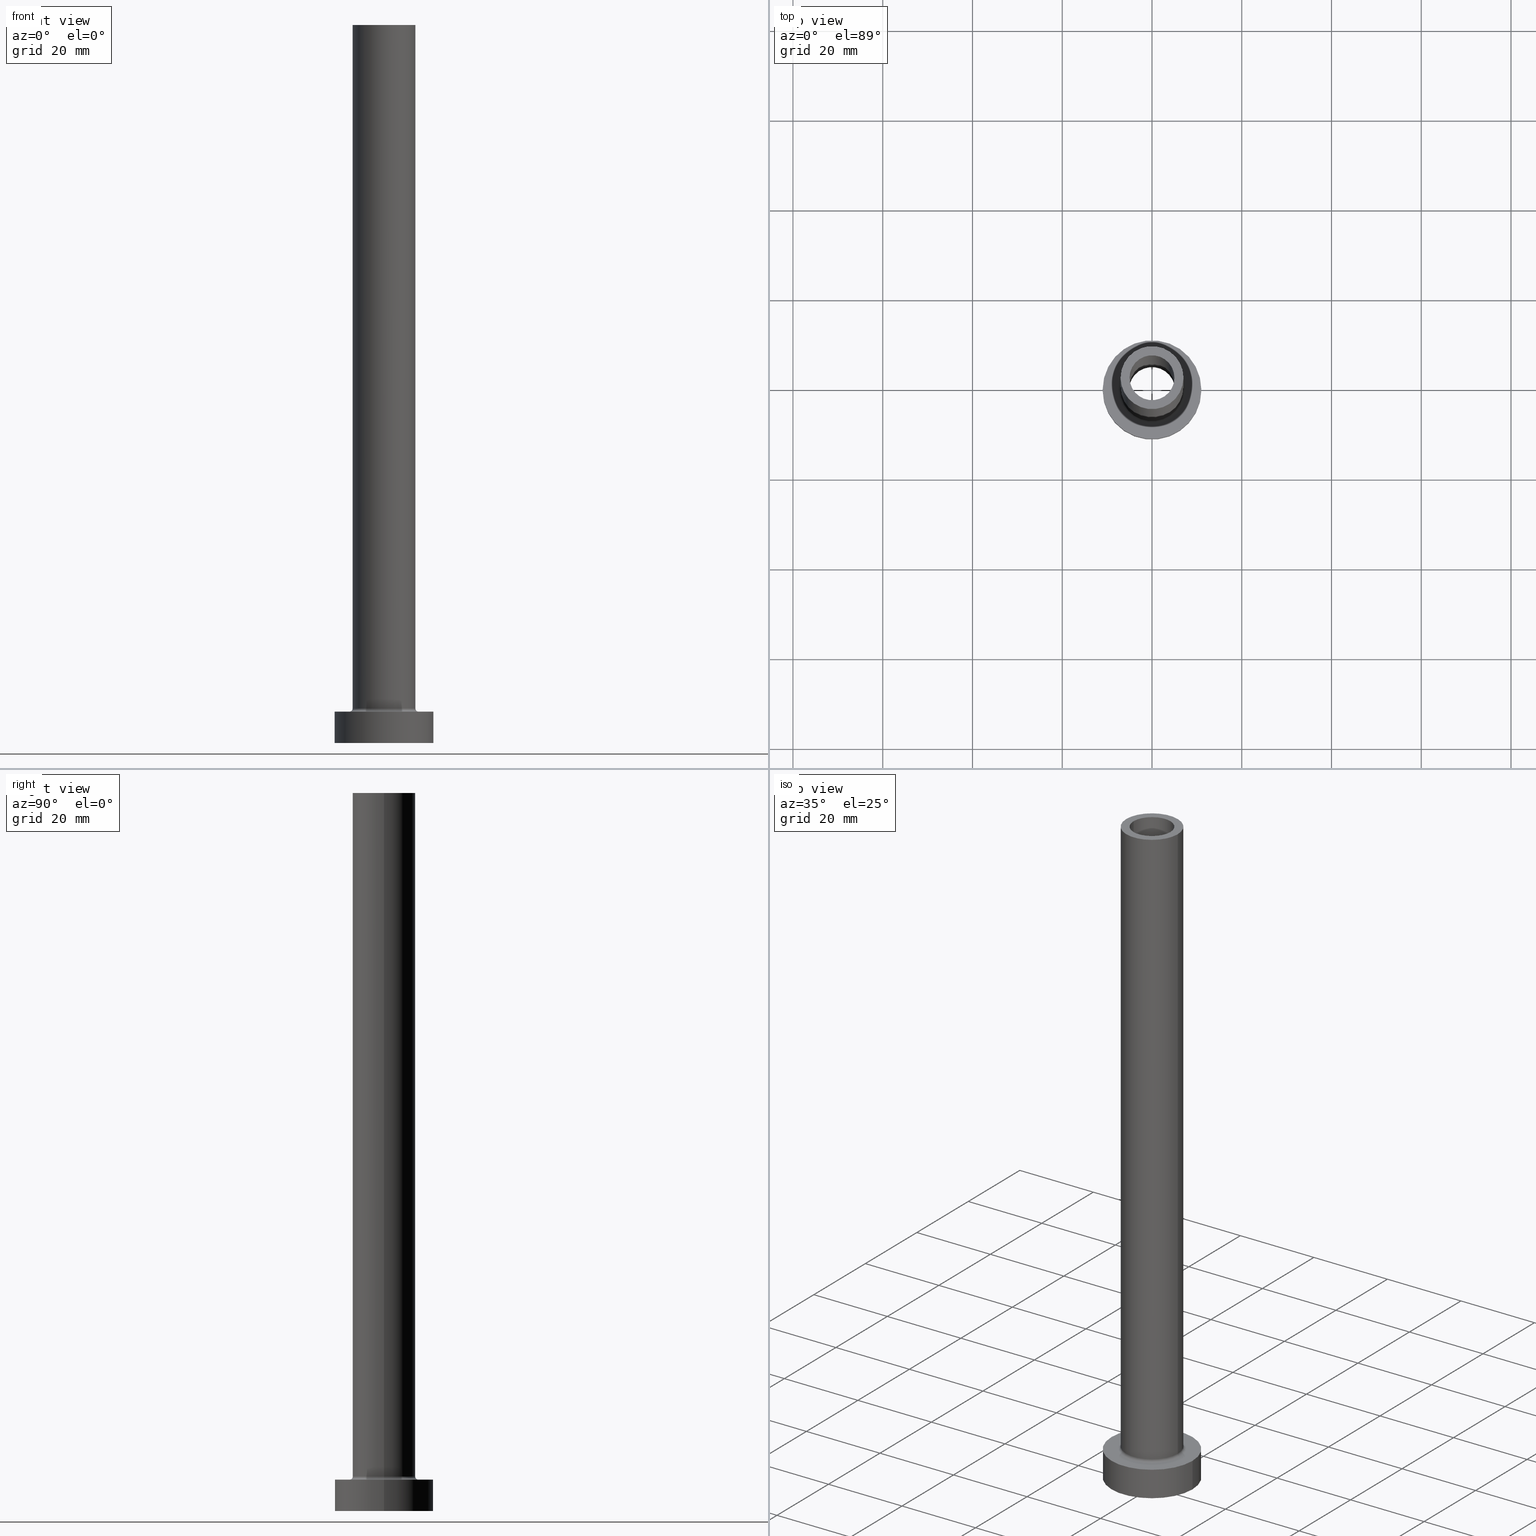
[diagram: canonical four-view strip — front | top / right | iso, engineering-drawing reading convention]
A machine part, canonical four-view strip (front | top / right | iso — engineering-drawing reading convention). The complete STEP part file that produces these views, byte-faithful:
ISO-10303-21;
HEADER;
FILE_DESCRIPTION (( 'STEP AP203' ),
    '1' );
FILE_NAME ('614e.STEP',
    '2023-02-13T10:08:33',
    ( '' ),
    ( '' ),
    'SwSTEP 2.0',
    'SolidWorks 2019',
    '' );
FILE_SCHEMA (( 'CONFIG_CONTROL_DESIGN' ));
ENDSEC;

DATA;
#1 = CALENDAR_DATE ( 2023, 13, 2 ) ;
#2 = DESIGN_CONTEXT ( 'detailed design', #209, 'design' ) ;
#3 = CC_DESIGN_APPROVAL ( #242, ( #385 ) ) ;
#4 = CC_DESIGN_DATE_AND_TIME_ASSIGNMENT ( #58, #164, ( #7 ) ) ;
#5 = LINE ( 'NONE', #349, #380 ) ;
#6 = DIRECTION ( 'NONE',  ( 0.000000000000000000, 0.000000000000000000, -1.000000000000000000 ) ) ;
#7 = SECURITY_CLASSIFICATION ( '', '', #31 ) ;
#8 = CARTESIAN_POINT ( 'NONE',  ( 0.000000000000000000, 0.000000000000000000, 0.000000000000000000 ) ) ;
#9 = ORIENTED_EDGE ( 'NONE', *, *, #387, .T. ) ;
#10 = ORIENTED_EDGE ( 'NONE', *, *, #42, .F. ) ;
#11 = DIRECTION ( 'NONE',  ( 1.000000000000000000, 0.000000000000000000, 0.000000000000000000 ) ) ;
#12 = DIRECTION ( 'NONE',  ( 0.000000000000000000, 0.000000000000000000, 1.000000000000000000 ) ) ;
#13 = VERTEX_POINT ( 'NONE', #458 ) ;
#14 = EDGE_CURVE ( 'NONE', #71, #227, #277, .T. ) ;
#15 = VERTEX_POINT ( 'NONE', #131 ) ;
#16 = CARTESIAN_POINT ( 'NONE',  ( 0.000000000000000000, 0.000000000000000000, 7.700000000000012612 ) ) ;
#17 = CYLINDRICAL_SURFACE ( 'NONE', #284, 5.000000000000000000 ) ;
#18 = ORIENTED_EDGE ( 'NONE', *, *, #69, .F. ) ;
#19 = EDGE_LOOP ( 'NONE', ( #174, #9, #186, #321 ) ) ;
#20 = EDGE_LOOP ( 'NONE', ( #293, #454 ) ) ;
#21 = FACE_OUTER_BOUND ( 'NONE', #80, .T. ) ;
#22 = EDGE_CURVE ( 'NONE', #77, #301, #268, .T. ) ;
#23 = CARTESIAN_POINT ( 'NONE',  ( 0.000000000000000000, 0.000000000000000000, 7.000000000000000000 ) ) ;
#24 = EDGE_LOOP ( 'NONE', ( #249, #39, #323, #266 ) ) ;
#25 = CYLINDRICAL_SURFACE ( 'NONE', #394, 5.150000000000001243 ) ;
#26 = CARTESIAN_POINT ( 'NONE',  ( 0.000000000000000000, 0.000000000000000000, 7.000000000000000000 ) ) ;
#27 = AXIS2_PLACEMENT_3D ( 'NONE', #50, #399, #43 ) ;
#28 = CARTESIAN_POINT ( 'NONE',  ( -5.000000000000000000, 0.000000000000000000, 160.0000000000000000 ) ) ;
#29 = UNCERTAINTY_MEASURE_WITH_UNIT (LENGTH_MEASURE( 1.000000000000000082E-05 ), #243, 'distance_accuracy_value', 'NONE');
#30 = ADVANCED_FACE ( 'NONE', ( #169, #70 ), #260, .F. ) ;
#31 = SECURITY_CLASSIFICATION_LEVEL ( 'unclassified' ) ;
#32 = PERSON_AND_ORGANIZATION_ROLE ( 'classification_officer' ) ;
#33 = PRODUCT_RELATED_PRODUCT_CATEGORY ( 'detail', '', ( #98 ) ) ;
#34 = APPROVAL_PERSON_ORGANIZATION ( #423, #223, #231 ) ;
#35 = VERTEX_POINT ( 'NONE', #318 ) ;
#36 = CIRCLE ( 'NONE', #99, 5.000000000000000000 ) ;
#37 = EDGE_CURVE ( 'NONE', #13, #445, #455, .T. ) ;
#38 = AXIS2_PLACEMENT_3D ( 'NONE', #119, #115, #326 ) ;
#39 = ORIENTED_EDGE ( 'NONE', *, *, #202, .T. ) ;
#40 = ORIENTED_EDGE ( 'NONE', *, *, #168, .T. ) ;
#41 = ORIENTED_EDGE ( 'NONE', *, *, #287, .T. ) ;
#42 = EDGE_CURVE ( 'NONE', #114, #227, #36, .T. ) ;
#43 = DIRECTION ( 'NONE',  ( -1.000000000000000000, 0.000000000000000000, 0.000000000000000000 ) ) ;
#44 = TOROIDAL_SURFACE ( 'NONE', #320, 7.700000000000001066, 0.6999999999999999556 ) ;
#45 = LINE ( 'NONE', #354, #342 ) ;
#46 = ADVANCED_BREP_SHAPE_REPRESENTATION ( '614e', ( #105, #410 ), #157 ) ;
#47 = VERTEX_POINT ( 'NONE', #136 ) ;
#48 = AXIS2_PLACEMENT_3D ( 'NONE', #382, #414, #451 ) ;
#49 = VERTEX_POINT ( 'NONE', #389 ) ;
#50 = CARTESIAN_POINT ( 'NONE',  ( 0.000000000000000000, 0.000000000000000000, 129.5663996924428716 ) ) ;
#51 = DIRECTION ( 'NONE',  ( 0.000000000000000000, 0.000000000000000000, 1.000000000000000000 ) ) ;
#52 = LINE ( 'NONE', #28, #233 ) ;
#53 = DATE_AND_TIME ( #90, #374 ) ;
#54 = LOCAL_TIME ( 11, 8, 33.00000000000000000, #158 ) ;
#55 = APPROVAL_ROLE ( '' ) ;
#56 = APPROVAL_STATUS ( 'not_yet_approved' ) ;
#57 = ADVANCED_FACE ( 'NONE', ( #247, #113 ), #76, .T. ) ;
#58 = DATE_AND_TIME ( #201, #269 ) ;
#59 = FACE_OUTER_BOUND ( 'NONE', #84, .T. ) ;
#60 = PERSON_AND_ORGANIZATION_ROLE ( 'creator' ) ;
#61 = AXIS2_PLACEMENT_3D ( 'NONE', #104, #391, #203 ) ;
#62 = LOCAL_TIME ( 11, 8, 33.00000000000000000, #344 ) ;
#63 = DIRECTION ( 'NONE',  ( 0.000000000000000000, 0.000000000000000000, -1.000000000000000000 ) ) ;
#64 = ORIENTED_EDGE ( 'NONE', *, *, #218, .F. ) ;
#65 = CLOSED_SHELL ( 'NONE', ( #305, #165, #262, #370, #101, #290, #460, #198, #154, #57, #128, #280, #30, #94 ) ) ;
#66 = APPROVAL_PERSON_ORGANIZATION ( #448, #242, #55 ) ;
#67 = CARTESIAN_POINT ( 'NONE',  ( 0.000000000000000000, 0.000000000000000000, 160.0000000000000000 ) ) ;
#68 = CARTESIAN_POINT ( 'NONE',  ( 0.000000000000000000, 0.000000000000000000, 129.5663996924428716 ) ) ;
#69 = EDGE_CURVE ( 'NONE', #71, #259, #144, .T. ) ;
#70 = FACE_OUTER_BOUND ( 'NONE', #20, .T. ) ;
#71 = VERTEX_POINT ( 'NONE', #142 ) ;
#72 = DIRECTION ( 'NONE',  ( -1.000000000000000000, 0.000000000000000000, 0.000000000000000000 ) ) ;
#73 = CIRCLE ( 'NONE', #193, 5.000000000000000000 ) ;
#74 = AXIS2_PLACEMENT_3D ( 'NONE', #225, #441, #11 ) ;
#75 = DIRECTION ( 'NONE',  ( 0.000000000000000000, 0.000000000000000000, 1.000000000000000000 ) ) ;
#76 = PLANE ( 'NONE',  #346 ) ;
#77 = VERTEX_POINT ( 'NONE', #397 ) ;
#78 = EDGE_LOOP ( 'NONE', ( #402, #117, #244, #170 ) ) ;
#79 = DIRECTION ( 'NONE',  ( 0.000000000000000000, 0.000000000000000000, 1.000000000000000000 ) ) ;
#80 = EDGE_LOOP ( 'NONE', ( #40, #143, #10, #361 ) ) ;
#81 = DIRECTION ( 'NONE',  ( 1.000000000000000000, 0.000000000000000000, 0.000000000000000000 ) ) ;
#82 = FACE_OUTER_BOUND ( 'NONE', #78, .T. ) ;
#83 = ORIENTED_EDGE ( 'NONE', *, *, #408, .F. ) ;
#84 = EDGE_LOOP ( 'NONE', ( #151, #395, #150, #422 ) ) ;
#85 = CIRCLE ( 'NONE', #48, 7.000000000000000888 ) ;
#86 = PERSON_AND_ORGANIZATION_ROLE ( 'design_owner' ) ;
#87 = DIRECTION ( 'NONE',  ( 0.000000000000000000, 0.000000000000000000, -1.000000000000000000 ) ) ;
#88 = EDGE_CURVE ( 'NONE', #211, #77, #340, .T. ) ;
#89 = CARTESIAN_POINT ( 'NONE',  ( -11.00000000000000000, 0.000000000000000000, 7.000000000000000000 ) ) ;
#90 = CALENDAR_DATE ( 2023, 13, 2 ) ;
#91 = CARTESIAN_POINT ( 'NONE',  ( 0.000000000000000000, 0.000000000000000000, 160.0000000000000000 ) ) ;
#92 = APPROVAL_PERSON_ORGANIZATION ( #341, #206, #279 ) ;
#93 = FACE_OUTER_BOUND ( 'NONE', #261, .T. ) ;
#94 = ADVANCED_FACE ( 'NONE', ( #82 ), #17, .F. ) ;
#95 = DIRECTION ( 'NONE',  ( 1.000000000000000000, 0.000000000000000000, -0.000000000000000000 ) ) ;
#96 = AXIS2_PLACEMENT_3D ( 'NONE', #130, #210, #345 ) ;
#97 = CIRCLE ( 'NONE', #241, 11.00000000000000000 ) ;
#98 = PRODUCT ( '614e', '614e', '', ( #358 ) ) ;
#99 = AXIS2_PLACEMENT_3D ( 'NONE', #145, #258, #392 ) ;
#100 = AXIS2_PLACEMENT_3D ( 'NONE', #299, #75, #81 ) ;
#101 = ADVANCED_FACE ( 'NONE', ( #120 ), #335, .T. ) ;
#102 = ORIENTED_EDGE ( 'NONE', *, *, #22, .T. ) ;
#103 = VERTEX_POINT ( 'NONE', #89 ) ;
#104 = CARTESIAN_POINT ( 'NONE',  ( 0.000000000000000000, 0.000000000000000000, 7.000000000000000000 ) ) ;
#105 = MANIFOLD_SOLID_BREP ( 'Odebrat vysunut�m4', #65 ) ;
#106 = ORIENTED_EDGE ( 'NONE', *, *, #228, .T. ) ;
#107 = CARTESIAN_POINT ( 'NONE',  ( 0.000000000000000000, 0.000000000000000000, 115.0000000000000000 ) ) ;
#108 = PRODUCT_DEFINITION_FORMATION_WITH_SPECIFIED_SOURCE ( 'LIBOVOLN�', '', #98, .NOT_KNOWN. ) ;
#109 = DIRECTION ( 'NONE',  ( 1.000000000000000000, 0.000000000000000000, -0.000000000000000000 ) ) ;
#110 = ORIENTED_EDGE ( 'NONE', *, *, #88, .T. ) ;
#111 =( NAMED_UNIT ( * ) PLANE_ANGLE_UNIT ( ) SI_UNIT ( $, .RADIAN. ) );
#112 = CYLINDRICAL_SURFACE ( 'NONE', #27, 5.150000000000001243 ) ;
#113 = FACE_OUTER_BOUND ( 'NONE', #398, .T. ) ;
#114 = VERTEX_POINT ( 'NONE', #449 ) ;
#115 = DIRECTION ( 'NONE',  ( -0.000000000000000000, -0.000000000000000000, -1.000000000000000000 ) ) ;
#116 = DIRECTION ( 'NONE',  ( -1.000000000000000000, 1.224646799147351975E-16, 0.000000000000000000 ) ) ;
#117 = ORIENTED_EDGE ( 'NONE', *, *, #69, .T. ) ;
#118 = VERTEX_POINT ( 'NONE', #375 ) ;
#119 = CARTESIAN_POINT ( 'NONE',  ( 0.000000000000000000, 0.000000000000000000, 7.000000000000000000 ) ) ;
#120 = FACE_OUTER_BOUND ( 'NONE', #19, .T. ) ;
#121 = CIRCLE ( 'NONE', #368, 7.000000000000000888 ) ;
#122 = EDGE_CURVE ( 'NONE', #35, #301, #162, .T. ) ;
#123 =( NAMED_UNIT ( * ) SI_UNIT ( $, .STERADIAN. ) SOLID_ANGLE_UNIT ( ) );
#124 = CARTESIAN_POINT ( 'NONE',  ( -5.000000000000000000, 0.000000000000000000, 160.0000000000000000 ) ) ;
#125 = LINE ( 'NONE', #276, #419 ) ;
#126 = VECTOR ( 'NONE', #184, 1000.000000000000000 ) ;
#127 = PERSON ( 'NEUR�EN�', 'NEUR�EN�', 'NEUR�EN�', ('NEUR�EN�'), ('NEUR�EN�'), ('NEUR�EN�') ) ;
#128 = ADVANCED_FACE ( 'NONE', ( #270 ), #44, .F. ) ;
#129 = LOCAL_TIME ( 11, 8, 33.00000000000000000, #199 ) ;
#130 = CARTESIAN_POINT ( 'NONE',  ( 0.000000000000000000, 0.000000000000000000, 0.000000000000000000 ) ) ;
#131 = CARTESIAN_POINT ( 'NONE',  ( -7.000000000000000888, 0.000000000000000000, 160.0000000000000000 ) ) ;
#132 = FACE_BOUND ( 'NONE', #253, .T. ) ;
#133 = EDGE_CURVE ( 'NONE', #227, #114, #367, .T. ) ;
#134 = DIRECTION ( 'NONE',  ( 0.000000000000000000, 0.000000000000000000, 1.000000000000000000 ) ) ;
#135 = CARTESIAN_POINT ( 'NONE',  ( 7.000000000000000888, 8.572527594031474176E-16, 7.700000000000012612 ) ) ;
#136 = CARTESIAN_POINT ( 'NONE',  ( 11.00000000000000000, 1.347111479062088405E-15, 0.000000000000000000 ) ) ;
#137 = ORIENTED_EDGE ( 'NONE', *, *, #317, .F. ) ;
#138 = ORIENTED_EDGE ( 'NONE', *, *, #424, .F. ) ;
#139 = LINE ( 'NONE', #403, #333 ) ;
#140 = DIRECTION ( 'NONE',  ( 1.000000000000000000, 0.000000000000000000, 0.000000000000000000 ) ) ;
#141 = EDGE_LOOP ( 'NONE', ( #390, #83 ) ) ;
#142 = CARTESIAN_POINT ( 'NONE',  ( 5.000000000000000000, 6.123233995736765296E-16, 160.0000000000000000 ) ) ;
#143 = ORIENTED_EDGE ( 'NONE', *, *, #14, .T. ) ;
#144 = CIRCLE ( 'NONE', #356, 5.000000000000000000 ) ;
#145 = CARTESIAN_POINT ( 'NONE',  ( 0.000000000000000000, 0.000000000000000000, 115.0000000000000000 ) ) ;
#146 = ORIENTED_EDGE ( 'NONE', *, *, #350, .T. ) ;
#147 = VERTEX_POINT ( 'NONE', #420 ) ;
#148 = DIRECTION ( 'NONE',  ( 0.000000000000000000, 0.000000000000000000, 1.000000000000000000 ) ) ;
#149 = DIRECTION ( 'NONE',  ( 1.000000000000000000, 0.000000000000000000, 0.000000000000000000 ) ) ;
#150 = ORIENTED_EDGE ( 'NONE', *, *, #317, .T. ) ;
#151 = ORIENTED_EDGE ( 'NONE', *, *, #350, .F. ) ;
#152 = CARTESIAN_POINT ( 'NONE',  ( 0.000000000000000000, 0.000000000000000000, 0.000000000000000000 ) ) ;
#153 = CARTESIAN_POINT ( 'NONE',  ( 0.000000000000000000, 0.000000000000000000, 0.000000000000000000 ) ) ;
#154 = ADVANCED_FACE ( 'NONE', ( #93 ), #235, .T. ) ;
#155 = AXIS2_PLACEMENT_3D ( 'NONE', #442, #51, #194 ) ;
#156 = CC_DESIGN_DATE_AND_TIME_ASSIGNMENT ( #421, #413, ( #385 ) ) ;
#157 =( GEOMETRIC_REPRESENTATION_CONTEXT ( 3 ) GLOBAL_UNCERTAINTY_ASSIGNED_CONTEXT ( ( #29 ) ) GLOBAL_UNIT_ASSIGNED_CONTEXT ( ( #243, #111, #123 ) ) REPRESENTATION_CONTEXT ( 'NONE', 'WORKASPACE' ) );
#158 = COORDINATED_UNIVERSAL_TIME_OFFSET ( 1, 0, .AHEAD. ) ;
#159 = DIRECTION ( 'NONE',  ( 1.000000000000000000, 0.000000000000000000, 0.000000000000000000 ) ) ;
#160 = CARTESIAN_POINT ( 'NONE',  ( 0.000000000000000000, 0.000000000000000000, 160.0000000000000000 ) ) ;
#161 = APPROVAL_DATE_TIME ( #338, #206 ) ;
#162 = CIRCLE ( 'NONE', #229, 0.7000000000000000666 ) ;
#163 = CALENDAR_DATE ( 2023, 13, 2 ) ;
#164 = DATE_TIME_ROLE ( 'classification_date' ) ;
#165 = ADVANCED_FACE ( 'NONE', ( #330 ), #25, .F. ) ;
#166 = DIRECTION ( 'NONE',  ( 0.000000000000000000, 0.000000000000000000, -1.000000000000000000 ) ) ;
#167 = CIRCLE ( 'NONE', #74, 5.150000000000001243 ) ;
#168 = EDGE_CURVE ( 'NONE', #259, #71, #73, .T. ) ;
#169 = FACE_BOUND ( 'NONE', #220, .T. ) ;
#170 = ORIENTED_EDGE ( 'NONE', *, *, #133, .F. ) ;
#171 = AXIS2_PLACEMENT_3D ( 'NONE', #434, #188, #369 ) ;
#172 = LINE ( 'NONE', #257, #312 ) ;
#173 = CARTESIAN_POINT ( 'NONE',  ( 0.000000000000000000, 0.000000000000000000, 7.000000000000000000 ) ) ;
#174 = ORIENTED_EDGE ( 'NONE', *, *, #287, .F. ) ;
#175 = ORIENTED_EDGE ( 'NONE', *, *, #444, .F. ) ;
#176 = DIRECTION ( 'NONE',  ( 1.000000000000000000, 0.000000000000000000, 0.000000000000000000 ) ) ;
#177 = DIRECTION ( 'NONE',  ( 1.000000000000000000, 0.000000000000000000, 0.000000000000000000 ) ) ;
#178 = ORIENTED_EDGE ( 'NONE', *, *, #133, .T. ) ;
#179 = DIRECTION ( 'NONE',  ( 1.000000000000000000, 0.000000000000000000, 0.000000000000000000 ) ) ;
#180 = ORIENTED_EDGE ( 'NONE', *, *, #189, .T. ) ;
#181 = FACE_OUTER_BOUND ( 'NONE', #435, .T. ) ;
#182 = AXIS2_PLACEMENT_3D ( 'NONE', #322, #134, #109 ) ;
#183 = AXIS2_PLACEMENT_3D ( 'NONE', #267, #87, #72 ) ;
#184 = DIRECTION ( 'NONE',  ( -0.000000000000000000, -0.000000000000000000, -1.000000000000000000 ) ) ;
#185 = CARTESIAN_POINT ( 'NONE',  ( 0.000000000000000000, 0.000000000000000000, 160.0000000000000000 ) ) ;
#186 = ORIENTED_EDGE ( 'NONE', *, *, #408, .T. ) ;
#187 = EDGE_LOOP ( 'NONE', ( #347, #41 ) ) ;
#188 = DIRECTION ( 'NONE',  ( 0.000000000000000000, 0.000000000000000000, 1.000000000000000000 ) ) ;
#189 = EDGE_CURVE ( 'NONE', #301, #77, #407, .T. ) ;
#190 = DIRECTION ( 'NONE',  ( 0.000000000000000000, 0.000000000000000000, 1.000000000000000000 ) ) ;
#191 = DIRECTION ( 'NONE',  ( -1.000000000000000000, 0.000000000000000000, 0.000000000000000000 ) ) ;
#192 = DIRECTION ( 'NONE',  ( 0.000000000000000000, 0.000000000000000000, 1.000000000000000000 ) ) ;
#193 = AXIS2_PLACEMENT_3D ( 'NONE', #67, #292, #348 ) ;
#194 = DIRECTION ( 'NONE',  ( 1.000000000000000000, 0.000000000000000000, 0.000000000000000000 ) ) ;
#195 = AXIS2_PLACEMENT_3D ( 'NONE', #314, #461, #95 ) ;
#196 = APPROVAL_DATE_TIME ( #53, #223 ) ;
#197 = SHAPE_DEFINITION_REPRESENTATION ( #204, #46 ) ;
#198 = ADVANCED_FACE ( 'NONE', ( #132, #343 ), #205, .F. ) ;
#199 = COORDINATED_UNIVERSAL_TIME_OFFSET ( 1, 0, .AHEAD. ) ;
#200 = PERSON_AND_ORGANIZATION ( #127, #437 ) ;
#201 = CALENDAR_DATE ( 2023, 13, 2 ) ;
#202 = EDGE_CURVE ( 'NONE', #118, #13, #5, .T. ) ;
#203 = DIRECTION ( 'NONE',  ( 1.000000000000000000, 0.000000000000000000, 0.000000000000000000 ) ) ;
#204 = PRODUCT_DEFINITION_SHAPE ( 'NONE', 'NONE',  #385 ) ;
#205 = PLANE ( 'NONE',  #96 ) ;
#206 = APPROVAL ( #283, 'NEUR�EN�' ) ;
#207 = CC_DESIGN_SECURITY_CLASSIFICATION ( #7, ( #108 ) ) ;
#208 = AXIS2_PLACEMENT_3D ( 'NONE', #294, #216, #298 ) ;
#209 = APPLICATION_CONTEXT ( 'configuration controlled 3d designs of mechanical parts and assemblies' ) ;
#210 = DIRECTION ( 'NONE',  ( 0.000000000000000000, 0.000000000000000000, 1.000000000000000000 ) ) ;
#211 = VERTEX_POINT ( 'NONE', #135 ) ;
#212 = ORIENTED_EDGE ( 'NONE', *, *, #332, .T. ) ;
#213 = DIRECTION ( 'NONE',  ( 0.000000000000000000, 0.000000000000000000, 1.000000000000000000 ) ) ;
#214 = ORIENTED_EDGE ( 'NONE', *, *, #122, .T. ) ;
#215 = VECTOR ( 'NONE', #63, 1000.000000000000000 ) ;
#216 = DIRECTION ( 'NONE',  ( 0.000000000000000000, 0.000000000000000000, 1.000000000000000000 ) ) ;
#217 = CIRCLE ( 'NONE', #256, 5.150000000000001243 ) ;
#218 = EDGE_CURVE ( 'NONE', #35, #211, #315, .T. ) ;
#219 = CARTESIAN_POINT ( 'NONE',  ( 7.700000000000001066, 0.000000000000000000, 7.700000000000012612 ) ) ;
#220 = EDGE_LOOP ( 'NONE', ( #224, #178 ) ) ;
#221 = EDGE_LOOP ( 'NONE', ( #319, #18 ) ) ;
#222 = CYLINDRICAL_SURFACE ( 'NONE', #38, 11.00000000000000000 ) ;
#223 = APPROVAL ( #232, 'NEUR�EN�' ) ;
#224 = ORIENTED_EDGE ( 'NONE', *, *, #42, .T. ) ;
#225 = CARTESIAN_POINT ( 'NONE',  ( 0.000000000000000000, 0.000000000000000000, 0.000000000000000000 ) ) ;
#226 = CARTESIAN_POINT ( 'NONE',  ( 0.000000000000000000, 0.000000000000000000, 160.0000000000000000 ) ) ;
#227 = VERTEX_POINT ( 'NONE', #328 ) ;
#228 = EDGE_CURVE ( 'NONE', #355, #47, #446, .T. ) ;
#229 = AXIS2_PLACEMENT_3D ( 'NONE', #415, #372, #116 ) ;
#230 = DIRECTION ( 'NONE',  ( -0.000000000000000000, -0.000000000000000000, -1.000000000000000000 ) ) ;
#231 = APPROVAL_ROLE ( '' ) ;
#232 = APPROVAL_STATUS ( 'not_yet_approved' ) ;
#233 = VECTOR ( 'NONE', #307, 1000.000000000000000 ) ;
#234 = PERSON_AND_ORGANIZATION_ROLE ( 'design_supplier' ) ;
#235 = CYLINDRICAL_SURFACE ( 'NONE', #254, 7.000000000000000888 ) ;
#236 = DIRECTION ( 'NONE',  ( -0.000000000000000000, -0.000000000000000000, -1.000000000000000000 ) ) ;
#237 = DIRECTION ( 'NONE',  ( -0.000000000000000000, -0.000000000000000000, -1.000000000000000000 ) ) ;
#238 = COORDINATED_UNIVERSAL_TIME_OFFSET ( 1, 0, .AHEAD. ) ;
#239 = EDGE_CURVE ( 'NONE', #118, #49, #325, .T. ) ;
#240 = AXIS2_PLACEMENT_3D ( 'NONE', #153, #148, #255 ) ;
#241 = AXIS2_PLACEMENT_3D ( 'NONE', #23, #190, #149 ) ;
#242 = APPROVAL ( #56, 'NEUR�EN�' ) ;
#243 =( LENGTH_UNIT ( ) NAMED_UNIT ( * ) SI_UNIT ( .MILLI., .METRE. ) );
#244 = ORIENTED_EDGE ( 'NONE', *, *, #337, .T. ) ;
#245 = CIRCLE ( 'NONE', #285, 11.00000000000000000 ) ;
#246 = CARTESIAN_POINT ( 'NONE',  ( 0.000000000000000000, 0.000000000000000000, 160.0000000000000000 ) ) ;
#247 = FACE_BOUND ( 'NONE', #221, .T. ) ;
#248 = EDGE_LOOP ( 'NONE', ( #64, #214, #393, #363 ) ) ;
#249 = ORIENTED_EDGE ( 'NONE', *, *, #250, .T. ) ;
#250 = EDGE_CURVE ( 'NONE', #49, #118, #217, .T. ) ;
#251 = LINE ( 'NONE', #365, #126 ) ;
#252 = DIRECTION ( 'NONE',  ( -0.000000000000000000, -0.000000000000000000, -1.000000000000000000 ) ) ;
#253 = EDGE_LOOP ( 'NONE', ( #138, #438 ) ) ;
#254 = AXIS2_PLACEMENT_3D ( 'NONE', #404, #230, #191 ) ;
#255 = DIRECTION ( 'NONE',  ( 1.000000000000000000, 0.000000000000000000, 0.000000000000000000 ) ) ;
#256 = AXIS2_PLACEMENT_3D ( 'NONE', #107, #302, #364 ) ;
#257 = CARTESIAN_POINT ( 'NONE',  ( 11.00000000000000000, 1.347111479062088405E-15, 7.000000000000000000 ) ) ;
#258 = DIRECTION ( 'NONE',  ( 0.000000000000000000, 0.000000000000000000, 1.000000000000000000 ) ) ;
#259 = VERTEX_POINT ( 'NONE', #124 ) ;
#260 = PLANE ( 'NONE',  #182 ) ;
#261 = EDGE_LOOP ( 'NONE', ( #433, #297, #212, #324 ) ) ;
#262 = ADVANCED_FACE ( 'NONE', ( #411 ), #425, .F. ) ;
#263 = CYLINDRICAL_SURFACE ( 'NONE', #183, 5.000000000000000000 ) ;
#264 = CARTESIAN_POINT ( 'NONE',  ( -5.150000000000001243, 0.000000000000000000, 0.000000000000000000 ) ) ;
#265 = CARTESIAN_POINT ( 'NONE',  ( 0.000000000000000000, 0.000000000000000000, 7.700000000000012612 ) ) ;
#266 = ORIENTED_EDGE ( 'NONE', *, *, #384, .F. ) ;
#267 = CARTESIAN_POINT ( 'NONE',  ( 0.000000000000000000, 0.000000000000000000, 160.0000000000000000 ) ) ;
#268 = CIRCLE ( 'NONE', #310, 7.700000000000001066 ) ;
#269 = LOCAL_TIME ( 11, 8, 33.00000000000000000, #377 ) ;
#270 = FACE_OUTER_BOUND ( 'NONE', #296, .T. ) ;
#271 = FACE_OUTER_BOUND ( 'NONE', #386, .T. ) ;
#272 = DIRECTION ( 'NONE',  ( -0.000000000000000000, -0.000000000000000000, -1.000000000000000000 ) ) ;
#273 = PERSON_AND_ORGANIZATION ( #127, #437 ) ;
#274 = DIRECTION ( 'NONE',  ( 0.000000000000000000, 0.000000000000000000, 1.000000000000000000 ) ) ;
#275 = CARTESIAN_POINT ( 'NONE',  ( 0.000000000000000000, 0.000000000000000000, 160.0000000000000000 ) ) ;
#276 = CARTESIAN_POINT ( 'NONE',  ( -7.000000000000000888, 0.000000000000000000, 160.0000000000000000 ) ) ;
#277 = LINE ( 'NONE', #406, #215 ) ;
#278 = DATE_AND_TIME ( #336, #129 ) ;
#279 = APPROVAL_ROLE ( '' ) ;
#280 = ADVANCED_FACE ( 'NONE', ( #271 ), #112, .F. ) ;
#281 = PERSON_AND_ORGANIZATION_ROLE ( 'creator' ) ;
#282 = CC_DESIGN_PERSON_AND_ORGANIZATION_ASSIGNMENT ( #426, #32, ( #7 ) ) ;
#283 = APPROVAL_STATUS ( 'not_yet_approved' ) ;
#284 = AXIS2_PLACEMENT_3D ( 'NONE', #226, #309, #300 ) ;
#285 = AXIS2_PLACEMENT_3D ( 'NONE', #440, #192, #176 ) ;
#286 = DIRECTION ( 'NONE',  ( -1.000000000000000000, 0.000000000000000000, 0.000000000000000000 ) ) ;
#287 = EDGE_CURVE ( 'NONE', #147, #103, #245, .T. ) ;
#288 = DIRECTION ( 'NONE',  ( 1.000000000000000000, 0.000000000000000000, -0.000000000000000000 ) ) ;
#289 = ORIENTED_EDGE ( 'NONE', *, *, #427, .T. ) ;
#290 = ADVANCED_FACE ( 'NONE', ( #181 ), #222, .T. ) ;
#291 = ORIENTED_EDGE ( 'NONE', *, *, #239, .T. ) ;
#292 = DIRECTION ( 'NONE',  ( 0.000000000000000000, 0.000000000000000000, 1.000000000000000000 ) ) ;
#293 = ORIENTED_EDGE ( 'NONE', *, *, #250, .F. ) ;
#294 = CARTESIAN_POINT ( 'NONE',  ( 0.000000000000000000, 0.000000000000000000, 115.0000000000000000 ) ) ;
#295 = CC_DESIGN_APPROVAL ( #223, ( #108 ) ) ;
#296 = EDGE_LOOP ( 'NONE', ( #436, #137, #110, #366 ) ) ;
#297 = ORIENTED_EDGE ( 'NONE', *, *, #311, .F. ) ;
#298 = DIRECTION ( 'NONE',  ( 1.000000000000000000, 0.000000000000000000, 0.000000000000000000 ) ) ;
#299 = CARTESIAN_POINT ( 'NONE',  ( 0.000000000000000000, 0.000000000000000000, 0.000000000000000000 ) ) ;
#300 = DIRECTION ( 'NONE',  ( -1.000000000000000000, 0.000000000000000000, 0.000000000000000000 ) ) ;
#301 = VERTEX_POINT ( 'NONE', #331 ) ;
#302 = DIRECTION ( 'NONE',  ( 0.000000000000000000, 0.000000000000000000, 1.000000000000000000 ) ) ;
#303 = AXIS2_PLACEMENT_3D ( 'NONE', #219, #360, #401 ) ;
#304 = CIRCLE ( 'NONE', #100, 11.00000000000000000 ) ;
#305 = ADVANCED_FACE ( 'NONE', ( #21 ), #263, .F. ) ;
#306 = CC_DESIGN_PERSON_AND_ORGANIZATION_ASSIGNMENT ( #273, #281, ( #385 ) ) ;
#307 = DIRECTION ( 'NONE',  ( 0.000000000000000000, 0.000000000000000000, -1.000000000000000000 ) ) ;
#308 = FACE_OUTER_BOUND ( 'NONE', #187, .T. ) ;
#309 = DIRECTION ( 'NONE',  ( 0.000000000000000000, 0.000000000000000000, -1.000000000000000000 ) ) ;
#310 = AXIS2_PLACEMENT_3D ( 'NONE', #173, #430, #177 ) ;
#311 = EDGE_CURVE ( 'NONE', #15, #431, #121, .T. ) ;
#312 = VECTOR ( 'NONE', #400, 1000.000000000000000 ) ;
#313 = CYLINDRICAL_SURFACE ( 'NONE', #357, 7.000000000000000888 ) ;
#314 = CARTESIAN_POINT ( 'NONE',  ( 0.000000000000000000, 0.000000000000000000, 7.000000000000000000 ) ) ;
#315 = CIRCLE ( 'NONE', #171, 7.000000000000000888 ) ;
#316 = CIRCLE ( 'NONE', #381, 7.000000000000000888 ) ;
#317 = EDGE_CURVE ( 'NONE', #211, #35, #85, .T. ) ;
#318 = CARTESIAN_POINT ( 'NONE',  ( -7.000000000000000888, 0.000000000000000000, 7.700000000000012612 ) ) ;
#319 = ORIENTED_EDGE ( 'NONE', *, *, #168, .F. ) ;
#320 = AXIS2_PLACEMENT_3D ( 'NONE', #265, #383, #453 ) ;
#321 = ORIENTED_EDGE ( 'NONE', *, *, #427, .F. ) ;
#322 = CARTESIAN_POINT ( 'NONE',  ( 0.000000000000000000, 0.000000000000000000, 115.0000000000000000 ) ) ;
#323 = ORIENTED_EDGE ( 'NONE', *, *, #37, .T. ) ;
#324 = ORIENTED_EDGE ( 'NONE', *, *, #218, .T. ) ;
#325 = CIRCLE ( 'NONE', #208, 5.150000000000001243 ) ;
#326 = DIRECTION ( 'NONE',  ( -1.000000000000000000, 0.000000000000000000, 0.000000000000000000 ) ) ;
#327 = CARTESIAN_POINT ( 'NONE',  ( 7.000000000000000888, 8.572527594031474176E-16, 160.0000000000000000 ) ) ;
#328 = CARTESIAN_POINT ( 'NONE',  ( 5.000000000000000000, 6.123233995736765296E-16, 115.0000000000000000 ) ) ;
#329 = APPLICATION_CONTEXT ( 'configuration controlled 3d designs of mechanical parts and assemblies' ) ;
#330 = FACE_OUTER_BOUND ( 'NONE', #24, .T. ) ;
#331 = CARTESIAN_POINT ( 'NONE',  ( -7.700000000000001066, 9.429780353434621002E-16, 7.000000000000006217 ) ) ;
#332 = EDGE_CURVE ( 'NONE', #15, #35, #125, .T. ) ;
#333 = VECTOR ( 'NONE', #236, 1000.000000000000000 ) ;
#334 = FACE_BOUND ( 'NONE', #432, .T. ) ;
#335 = CYLINDRICAL_SURFACE ( 'NONE', #418, 11.00000000000000000 ) ;
#336 = CALENDAR_DATE ( 2023, 13, 2 ) ;
#337 = EDGE_CURVE ( 'NONE', #259, #114, #52, .T. ) ;
#338 = DATE_AND_TIME ( #1, #62 ) ;
#339 = DIRECTION ( 'NONE',  ( 0.000000000000000000, 0.000000000000000000, 1.000000000000000000 ) ) ;
#340 = CIRCLE ( 'NONE', #303, 0.7000000000000000666 ) ;
#341 = PERSON_AND_ORGANIZATION ( #127, #437 ) ;
#342 = VECTOR ( 'NONE', #388, 1000.000000000000000 ) ;
#343 = FACE_OUTER_BOUND ( 'NONE', #141, .T. ) ;
#344 = COORDINATED_UNIVERSAL_TIME_OFFSET ( 1, 0, .AHEAD. ) ;
#345 = DIRECTION ( 'NONE',  ( 1.000000000000000000, 0.000000000000000000, -0.000000000000000000 ) ) ;
#346 = AXIS2_PLACEMENT_3D ( 'NONE', #185, #213, #288 ) ;
#347 = ORIENTED_EDGE ( 'NONE', *, *, #444, .T. ) ;
#348 = DIRECTION ( 'NONE',  ( 1.000000000000000000, 0.000000000000000000, 0.000000000000000000 ) ) ;
#349 = CARTESIAN_POINT ( 'NONE',  ( 5.150000000000001243, 6.306931015608869596E-16, 129.5663996924428716 ) ) ;
#350 = EDGE_CURVE ( 'NONE', #431, #15, #316, .T. ) ;
#351 = ORIENTED_EDGE ( 'NONE', *, *, #202, .F. ) ;
#352 = ORIENTED_EDGE ( 'NONE', *, *, #387, .F. ) ;
#353 = CC_DESIGN_PERSON_AND_ORGANIZATION_ASSIGNMENT ( #200, #234, ( #108 ) ) ;
#354 = CARTESIAN_POINT ( 'NONE',  ( -5.150000000000001243, 0.000000000000000000, 129.5663996924428716 ) ) ;
#355 = VERTEX_POINT ( 'NONE', #457 ) ;
#356 = AXIS2_PLACEMENT_3D ( 'NONE', #246, #12, #140 ) ;
#357 = AXIS2_PLACEMENT_3D ( 'NONE', #91, #237, #378 ) ;
#358 = MECHANICAL_CONTEXT ( 'NONE', #329, 'mechanical' ) ;
#359 = DIRECTION ( 'NONE',  ( 1.000000000000000000, 0.000000000000000000, 0.000000000000000000 ) ) ;
#360 = DIRECTION ( 'NONE',  ( 0.000000000000000000, -1.000000000000000000, 0.000000000000000000 ) ) ;
#361 = ORIENTED_EDGE ( 'NONE', *, *, #337, .F. ) ;
#362 = DIRECTION ( 'NONE',  ( 1.000000000000000000, 0.000000000000000000, 0.000000000000000000 ) ) ;
#363 = ORIENTED_EDGE ( 'NONE', *, *, #88, .F. ) ;
#364 = DIRECTION ( 'NONE',  ( 1.000000000000000000, 0.000000000000000000, 0.000000000000000000 ) ) ;
#365 = CARTESIAN_POINT ( 'NONE',  ( -11.00000000000000000, 0.000000000000000000, 7.000000000000000000 ) ) ;
#366 = ORIENTED_EDGE ( 'NONE', *, *, #189, .F. ) ;
#367 = CIRCLE ( 'NONE', #155, 5.000000000000000000 ) ;
#368 = AXIS2_PLACEMENT_3D ( 'NONE', #160, #274, #159 ) ;
#369 = DIRECTION ( 'NONE',  ( 1.000000000000000000, 0.000000000000000000, 0.000000000000000000 ) ) ;
#370 = ADVANCED_FACE ( 'NONE', ( #59 ), #313, .T. ) ;
#371 = CC_DESIGN_PERSON_AND_ORGANIZATION_ASSIGNMENT ( #379, #60, ( #108 ) ) ;
#372 = DIRECTION ( 'NONE',  ( 1.224646799147353207E-16, 1.000000000000000000, -0.000000000000000000 ) ) ;
#373 = DIRECTION ( 'NONE',  ( -0.000000000000000000, -0.000000000000000000, -1.000000000000000000 ) ) ;
#374 = LOCAL_TIME ( 11, 8, 33.00000000000000000, #238 ) ;
#375 = CARTESIAN_POINT ( 'NONE',  ( 5.150000000000001243, 6.306931015608869596E-16, 115.0000000000000000 ) ) ;
#376 = APPLICATION_PROTOCOL_DEFINITION ( 'international standard', 'config_control_design', 1994, #209 ) ;
#377 = COORDINATED_UNIVERSAL_TIME_OFFSET ( 1, 0, .AHEAD. ) ;
#378 = DIRECTION ( 'NONE',  ( -1.000000000000000000, 0.000000000000000000, 0.000000000000000000 ) ) ;
#379 = PERSON_AND_ORGANIZATION ( #127, #437 ) ;
#380 = VECTOR ( 'NONE', #6, 1000.000000000000000 ) ;
#381 = AXIS2_PLACEMENT_3D ( 'NONE', #275, #339, #416 ) ;
#382 = CARTESIAN_POINT ( 'NONE',  ( 0.000000000000000000, 0.000000000000000000, 7.700000000000012612 ) ) ;
#383 = DIRECTION ( 'NONE',  ( 0.000000000000000000, 0.000000000000000000, 1.000000000000000000 ) ) ;
#384 = EDGE_CURVE ( 'NONE', #49, #445, #45, .T. ) ;
#385 = PRODUCT_DEFINITION ( 'NEZN�M�', '', #108, #2 ) ;
#386 = EDGE_LOOP ( 'NONE', ( #351, #291, #459, #443 ) ) ;
#387 = EDGE_CURVE ( 'NONE', #147, #47, #172, .T. ) ;
#388 = DIRECTION ( 'NONE',  ( 0.000000000000000000, 0.000000000000000000, -1.000000000000000000 ) ) ;
#389 = CARTESIAN_POINT ( 'NONE',  ( -5.150000000000001243, 0.000000000000000000, 115.0000000000000000 ) ) ;
#390 = ORIENTED_EDGE ( 'NONE', *, *, #228, .F. ) ;
#391 = DIRECTION ( 'NONE',  ( -0.000000000000000000, -0.000000000000000000, -1.000000000000000000 ) ) ;
#392 = DIRECTION ( 'NONE',  ( 1.000000000000000000, 0.000000000000000000, 0.000000000000000000 ) ) ;
#393 = ORIENTED_EDGE ( 'NONE', *, *, #22, .F. ) ;
#394 = AXIS2_PLACEMENT_3D ( 'NONE', #68, #166, #286 ) ;
#395 = ORIENTED_EDGE ( 'NONE', *, *, #456, .T. ) ;
#396 = APPLICATION_PROTOCOL_DEFINITION ( 'international standard', 'config_control_design', 1994, #329 ) ;
#397 = CARTESIAN_POINT ( 'NONE',  ( 7.700000000000001066, 0.000000000000000000, 7.000000000000006217 ) ) ;
#398 = EDGE_LOOP ( 'NONE', ( #405, #146 ) ) ;
#399 = DIRECTION ( 'NONE',  ( 0.000000000000000000, 0.000000000000000000, -1.000000000000000000 ) ) ;
#400 = DIRECTION ( 'NONE',  ( -0.000000000000000000, -0.000000000000000000, -1.000000000000000000 ) ) ;
#401 = DIRECTION ( 'NONE',  ( 0.000000000000000000, 0.000000000000000000, -1.000000000000000000 ) ) ;
#402 = ORIENTED_EDGE ( 'NONE', *, *, #14, .F. ) ;
#403 = CARTESIAN_POINT ( 'NONE',  ( 7.000000000000000888, 8.572527594031474176E-16, 160.0000000000000000 ) ) ;
#404 = CARTESIAN_POINT ( 'NONE',  ( 0.000000000000000000, 0.000000000000000000, 160.0000000000000000 ) ) ;
#405 = ORIENTED_EDGE ( 'NONE', *, *, #311, .T. ) ;
#406 = CARTESIAN_POINT ( 'NONE',  ( 5.000000000000000000, 6.123233995736765296E-16, 160.0000000000000000 ) ) ;
#407 = CIRCLE ( 'NONE', #61, 7.700000000000001066 ) ;
#408 = EDGE_CURVE ( 'NONE', #47, #355, #304, .T. ) ;
#409 = PERSON_AND_ORGANIZATION ( #127, #437 ) ;
#410 = AXIS2_PLACEMENT_3D ( 'NONE', #152, #439, #362 ) ;
#411 = FACE_OUTER_BOUND ( 'NONE', #248, .T. ) ;
#412 = DIRECTION ( 'NONE',  ( -1.000000000000000000, 0.000000000000000000, 0.000000000000000000 ) ) ;
#413 = DATE_TIME_ROLE ( 'creation_date' ) ;
#414 = DIRECTION ( 'NONE',  ( 0.000000000000000000, 0.000000000000000000, 1.000000000000000000 ) ) ;
#415 = CARTESIAN_POINT ( 'NONE',  ( -7.700000000000001066, 9.429780353434621002E-16, 7.700000000000012612 ) ) ;
#416 = DIRECTION ( 'NONE',  ( 1.000000000000000000, 0.000000000000000000, 0.000000000000000000 ) ) ;
#417 = AXIS2_PLACEMENT_3D ( 'NONE', #8, #252, #179 ) ;
#418 = AXIS2_PLACEMENT_3D ( 'NONE', #26, #272, #412 ) ;
#419 = VECTOR ( 'NONE', #373, 1000.000000000000000 ) ;
#420 = CARTESIAN_POINT ( 'NONE',  ( 11.00000000000000000, 1.347111479062088405E-15, 7.000000000000000000 ) ) ;
#421 = DATE_AND_TIME ( #163, #54 ) ;
#422 = ORIENTED_EDGE ( 'NONE', *, *, #332, .F. ) ;
#423 = PERSON_AND_ORGANIZATION ( #127, #437 ) ;
#424 = EDGE_CURVE ( 'NONE', #445, #13, #167, .T. ) ;
#425 = TOROIDAL_SURFACE ( 'NONE', #447, 7.700000000000001066, 0.6999999999999999556 ) ;
#426 = PERSON_AND_ORGANIZATION ( #127, #437 ) ;
#427 = EDGE_CURVE ( 'NONE', #103, #355, #251, .T. ) ;
#428 = CC_DESIGN_APPROVAL ( #206, ( #7 ) ) ;
#429 = CC_DESIGN_PERSON_AND_ORGANIZATION_ASSIGNMENT ( #409, #86, ( #98 ) ) ;
#430 = DIRECTION ( 'NONE',  ( -0.000000000000000000, -0.000000000000000000, -1.000000000000000000 ) ) ;
#431 = VERTEX_POINT ( 'NONE', #327 ) ;
#432 = EDGE_LOOP ( 'NONE', ( #102, #180 ) ) ;
#433 = ORIENTED_EDGE ( 'NONE', *, *, #456, .F. ) ;
#434 = CARTESIAN_POINT ( 'NONE',  ( 0.000000000000000000, 0.000000000000000000, 7.700000000000012612 ) ) ;
#435 = EDGE_LOOP ( 'NONE', ( #352, #175, #289, #106 ) ) ;
#436 = ORIENTED_EDGE ( 'NONE', *, *, #122, .F. ) ;
#437 = ORGANIZATION ( 'NEUR�EN�', 'NEUR�EN�', '' ) ;
#438 = ORIENTED_EDGE ( 'NONE', *, *, #37, .F. ) ;
#439 = DIRECTION ( 'NONE',  ( 0.000000000000000000, 0.000000000000000000, 1.000000000000000000 ) ) ;
#440 = CARTESIAN_POINT ( 'NONE',  ( 0.000000000000000000, 0.000000000000000000, 7.000000000000000000 ) ) ;
#441 = DIRECTION ( 'NONE',  ( -0.000000000000000000, -0.000000000000000000, -1.000000000000000000 ) ) ;
#442 = CARTESIAN_POINT ( 'NONE',  ( 0.000000000000000000, 0.000000000000000000, 115.0000000000000000 ) ) ;
#443 = ORIENTED_EDGE ( 'NONE', *, *, #424, .T. ) ;
#444 = EDGE_CURVE ( 'NONE', #103, #147, #97, .T. ) ;
#445 = VERTEX_POINT ( 'NONE', #264 ) ;
#446 = CIRCLE ( 'NONE', #240, 11.00000000000000000 ) ;
#447 = AXIS2_PLACEMENT_3D ( 'NONE', #16, #79, #359 ) ;
#448 = PERSON_AND_ORGANIZATION ( #127, #437 ) ;
#449 = CARTESIAN_POINT ( 'NONE',  ( -5.000000000000000000, 0.000000000000000000, 115.0000000000000000 ) ) ;
#450 = APPROVAL_DATE_TIME ( #278, #242 ) ;
#451 = DIRECTION ( 'NONE',  ( 1.000000000000000000, 0.000000000000000000, 0.000000000000000000 ) ) ;
#452 = PLANE ( 'NONE',  #195 ) ;
#453 = DIRECTION ( 'NONE',  ( 1.000000000000000000, 0.000000000000000000, 0.000000000000000000 ) ) ;
#454 = ORIENTED_EDGE ( 'NONE', *, *, #239, .F. ) ;
#455 = CIRCLE ( 'NONE', #417, 5.150000000000001243 ) ;
#456 = EDGE_CURVE ( 'NONE', #431, #211, #139, .T. ) ;
#457 = CARTESIAN_POINT ( 'NONE',  ( -11.00000000000000000, 0.000000000000000000, 0.000000000000000000 ) ) ;
#458 = CARTESIAN_POINT ( 'NONE',  ( 5.150000000000001243, 6.306931015608869596E-16, 0.000000000000000000 ) ) ;
#459 = ORIENTED_EDGE ( 'NONE', *, *, #384, .T. ) ;
#460 = ADVANCED_FACE ( 'NONE', ( #334, #308 ), #452, .T. ) ;
#461 = DIRECTION ( 'NONE',  ( 0.000000000000000000, 0.000000000000000000, 1.000000000000000000 ) ) ;
ENDSEC;
END-ISO-10303-21;
